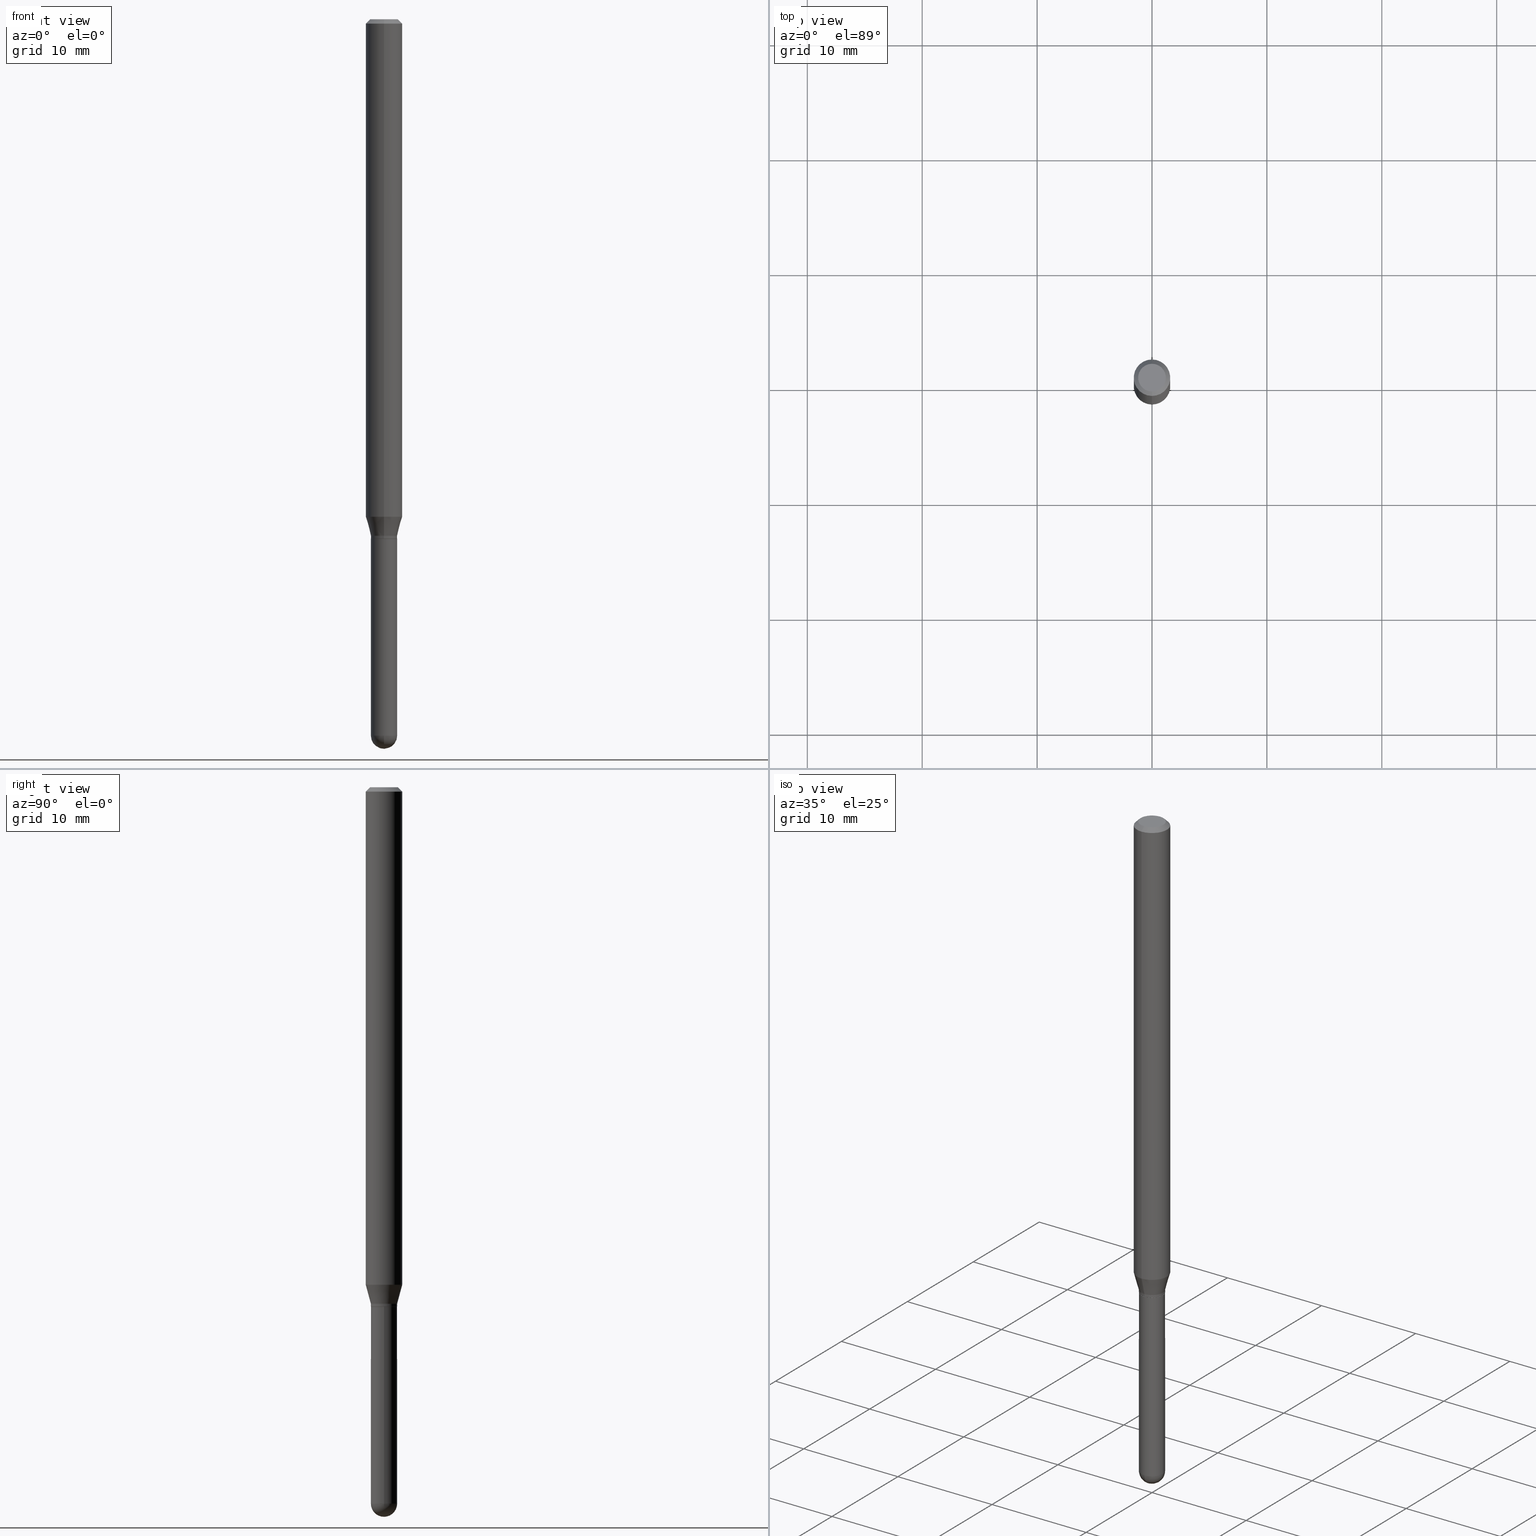
[diagram: canonical four-view strip — front | top / right | iso, engineering-drawing reading convention]
A machine part, canonical four-view strip (front | top / right | iso — engineering-drawing reading convention). The complete STEP part file that produces these views, byte-faithful:
ISO-10303-21;
HEADER;
FILE_DESCRIPTION (( 'STEP AP203' ),
    '1' );
FILE_NAME ('02767.STEP',
    '2024-03-07T21:21:22',
    ( '' ),
    ( '' ),
    'SwSTEP 2.0',
    'SolidWorks 2023',
    '' );
FILE_SCHEMA (( 'CONFIG_CONTROL_DESIGN' ));
ENDSEC;

DATA;
#1 = CARTESIAN_POINT ( 'NONE',  ( 4.352787625603671437E-29, -6.215047079848158889E-15, -1.780000000000000471 ) ) ;
#2 = CARTESIAN_POINT ( 'NONE',  ( 5.999777670883203691E-29, -8.577097597456086203E-15, -2.455000000000000071 ) ) ;
#3 = AXIS2_PLACEMENT_3D ( 'NONE', #288, #136, #208 ) ;
#4 = CARTESIAN_POINT ( 'NONE',  ( 3.668079459778454619E-31, -5.237399224591258336E-17, -0.01500000000000032904 ) ) ;
#5 = CC_DESIGN_APPROVAL ( #118, ( #438 ) ) ;
#6 = CALENDAR_DATE ( 2024, 7, 3 ) ;
#7 = CC_DESIGN_PERSON_AND_ORGANIZATION_ASSIGNMENT ( #82, #392, ( #304 ) ) ;
#8 = VERTEX_POINT ( 'NONE', #62 ) ;
#9 = EDGE_CURVE ( 'NONE', #403, #158, #145, .T. ) ;
#10 = SHAPE_DEFINITION_REPRESENTATION ( #157, #71 ) ;
#11 = ORIENTED_EDGE ( 'NONE', *, *, #325, .F. ) ;
#12 = ORIENTED_EDGE ( 'NONE', *, *, #231, .F. ) ;
#13 = CONICAL_SURFACE ( 'NONE', #302, 0.04449999999999999789, 0.7853981633969275844 ) ;
#14 = CIRCLE ( 'NONE', #418, 0.04749999999999999362 ) ;
#15 = VERTEX_POINT ( 'NONE', #30 ) ;
#16 = PERSON_AND_ORGANIZATION ( #386, #226 ) ;
#17 = ORIENTED_EDGE ( 'NONE', *, *, #381, .T. ) ;
#18 = CONICAL_SURFACE ( 'NONE', #331, 0.04500000000000019956, 0.2617993877991511287 ) ;
#19 = APPLICATION_PROTOCOL_DEFINITION ( 'international standard', 'config_control_design', 1994, #402 ) ;
#20 = DIRECTION ( 'NONE',  ( -2.445468806185136597E-29, 3.491481338843145583E-15, 1.000000000000000000 ) ) ;
#21 = PRODUCT ( '02767', '02767', '', ( #241 ) ) ;
#22 = EDGE_CURVE ( 'NONE', #65, #403, #204, .T. ) ;
#23 = DIRECTION ( 'NONE',  ( -6.982962677686266711E-15, -1.000000000000000000, 6.070773319253891442E-15 ) ) ;
#24 = APPROVAL_ROLE ( '' ) ;
#25 = VERTEX_POINT ( 'NONE', #68 ) ;
#26 = DIRECTION ( 'NONE',  ( -7.105427357601001070E-15, -1.000000000000000000, 0.000000000000000000 ) ) ;
#27 = ADVANCED_FACE ( 'NONE', ( #215 ), #319, .F. ) ;
#28 = CARTESIAN_POINT ( 'NONE',  ( 4.440892098501046230E-16, 0.06249999999999995143, -0.01500000000000054588 ) ) ;
#29 = DIRECTION ( 'NONE',  ( -1.000000000000000000, 6.982962677686265922E-15, -4.883557194083112340E-29 ) ) ;
#30 = CARTESIAN_POINT ( 'NONE',  ( 6.111747891312187447E-29, -8.731458802405945600E-15, -2.500000000000000000 ) ) ;
#31 = AXIS2_PLACEMENT_3D ( 'NONE', #81, #184, #154 ) ;
#32 = DIRECTION ( 'NONE',  ( -1.000000000000000000, 7.105427357601001070E-15, -4.926315508542082329E-29 ) ) ;
#33 = DIRECTION ( 'NONE',  ( 2.445386306518916251E-29, -3.491599483060762831E-15, -1.000000000000000000 ) ) ;
#34 = CARTESIAN_POINT ( 'NONE',  ( 6.003625919184510659E-29, -8.571586686859921733E-15, -2.455000000000000071 ) ) ;
#35 = EDGE_LOOP ( 'NONE', ( #187, #437, #312, #344 ) ) ;
#36 = CARTESIAN_POINT ( 'NONE',  ( 0.000000000000000000, 0.000000000000000000, 0.000000000000000000 ) ) ;
#37 = DIRECTION ( 'NONE',  ( -2.445386306518916251E-29, 3.491599483060762831E-15, 1.000000000000000000 ) ) ;
#38 = AXIS2_PLACEMENT_3D ( 'NONE', #242, #326, #503 ) ;
#39 = VECTOR ( 'NONE', #103, 39.37007874015748143 ) ;
#40 = APPROVAL_PERSON_ORGANIZATION ( #396, #368, #236 ) ;
#41 = DIRECTION ( 'NONE',  ( -2.445468806185136597E-29, 3.491481338843145583E-15, 1.000000000000000000 ) ) ;
#42 = CARTESIAN_POINT ( 'NONE',  ( -4.364351673553912750E-16, -0.06250000000000005551, -0.01500000000000011047 ) ) ;
#43 = ORIENTED_EDGE ( 'NONE', *, *, #235, .F. ) ;
#44 = ADVANCED_FACE ( 'NONE', ( #415 ), #137, .T. ) ;
#45 = CONICAL_SURFACE ( 'NONE', #442, 0.06250000000000000000, 0.7853981633974483900 ) ;
#46 = LINE ( 'NONE', #77, #51 ) ;
#47 = PERSON_AND_ORGANIZATION ( #386, #226 ) ;
#48 = ORIENTED_EDGE ( 'NONE', *, *, #504, .T. ) ;
#49 = AXIS2_PLACEMENT_3D ( 'NONE', #379, #506, #256 ) ;
#50 = APPROVAL_STATUS ( 'not_yet_approved' ) ;
#51 = VECTOR ( 'NONE', #192, 39.37007874015748143 ) ;
#52 = ORIENTED_EDGE ( 'NONE', *, *, #153, .F. ) ;
#53 = ORIENTED_EDGE ( 'NONE', *, *, #60, .T. ) ;
#54 = ADVANCED_FACE ( 'NONE', ( #374 ), #13, .T. ) ;
#55 = ORIENTED_EDGE ( 'NONE', *, *, #243, .F. ) ;
#56 = DIRECTION ( 'NONE',  ( 5.024295867785445738E-15, 0.7071067811861817543, 0.7071067811869132802 ) ) ;
#57 = CARTESIAN_POINT ( 'NONE',  ( -3.142333204958351929E-16, -0.04500000000000574374, -1.779499999999999860 ) ) ;
#58 = VECTOR ( 'NONE', #413, 39.37007874015748143 ) ;
#59 = DIRECTION ( 'NONE',  ( -2.445468806185136877E-29, 3.491481338843145188E-15, 1.000000000000000000 ) ) ;
#60 = EDGE_CURVE ( 'NONE', #124, #397, #494, .T. ) ;
#61 = DIRECTION ( 'NONE',  ( -2.445386306518916251E-29, 3.491599483060762831E-15, 1.000000000000000000 ) ) ;
#62 = CARTESIAN_POINT ( 'NONE',  ( -0.04499999999999999833, -7.073467503908314913E-15, -1.780000000000000027 ) ) ;
#63 = DIRECTION ( 'NONE',  ( -6.982962677686265922E-15, -1.000000000000000000, 6.138984255425310648E-15 ) ) ;
#64 = CC_DESIGN_PERSON_AND_ORGANIZATION_ASSIGNMENT ( #286, #366, ( #21 ) ) ;
#65 = VERTEX_POINT ( 'NONE', #178 ) ;
#66 = LINE ( 'NONE', #461, #169 ) ;
#67 = COORDINATED_UNIVERSAL_TIME_OFFSET ( 5, 0, .BEHIND. ) ;
#68 = CARTESIAN_POINT ( 'NONE',  ( -3.773273898774340269E-16, -0.04749999999999999362, -1.622903604164366689E-16 ) ) ;
#69 = CIRCLE ( 'NONE', #200, 0.06250000000000000000 ) ;
#70 = DIRECTION ( 'NONE',  ( -2.445468806185136877E-29, 3.491481338843145188E-15, 1.000000000000000000 ) ) ;
#71 = ADVANCED_BREP_SHAPE_REPRESENTATION ( '02767', ( #511, #161, #305 ), #128 ) ;
#72 = DIRECTION ( 'NONE',  ( -2.445386306518916251E-29, 3.491599483060762831E-15, 1.000000000000000000 ) ) ;
#73 = LINE ( 'NONE', #152, #214 ) ;
#74 = DIRECTION ( 'NONE',  ( -2.445386306518916251E-29, 3.491599483060762831E-15, 1.000000000000000000 ) ) ;
#75 = DIRECTION ( 'NONE',  ( -6.982962677686266711E-15, -1.000000000000000000, 3.491599483060763226E-15 ) ) ;
#76 = CIRCLE ( 'NONE', #201, 0.04500000000000001221 ) ;
#77 = CARTESIAN_POINT ( 'NONE',  ( -4.364351673553916201E-16, -0.06250000000000000000, 2.182249676912976770E-16 ) ) ;
#78 = EDGE_CURVE ( 'NONE', #267, #110, #464, .T. ) ;
#79 = DIRECTION ( 'NONE',  ( -2.445386306518916251E-29, 3.491599483060762831E-15, 1.000000000000000000 ) ) ;
#80 = ORIENTED_EDGE ( 'NONE', *, *, #78, .T. ) ;
#81 = CARTESIAN_POINT ( 'NONE',  ( 4.328333762538481381E-29, -6.180131085017549300E-15, -1.770000000000000018 ) ) ;
#82 = PERSON_AND_ORGANIZATION ( #386, #226 ) ;
#83 = ORIENTED_EDGE ( 'NONE', *, *, #243, .T. ) ;
#84 = CIRCLE ( 'NONE', #225, 0.04499999999999970690 ) ;
#85 = APPROVAL_PERSON_ORGANIZATION ( #16, #118, #24 ) ;
#86 = ORIENTED_EDGE ( 'NONE', *, *, #490, .F. ) ;
#87 = DATE_TIME_ROLE ( 'classification_date' ) ;
#88 = VERTEX_POINT ( 'NONE', #28 ) ;
#89 = AXIS2_PLACEMENT_3D ( 'NONE', #502, #495, #130 ) ;
#90 = ADVANCED_FACE ( 'NONE', ( #174 ), #448, .T. ) ;
#91 = CARTESIAN_POINT ( 'NONE',  ( 4.352787625603671437E-29, -6.215047079848158889E-15, -1.780000000000000471 ) ) ;
#92 = CARTESIAN_POINT ( 'NONE',  ( 4.352787625603671437E-29, -6.215047079848158889E-15, -1.780000000000000471 ) ) ;
#93 = EDGE_LOOP ( 'NONE', ( #484, #131, #408, #500 ) ) ;
#94 = FACE_OUTER_BOUND ( 'NONE', #227, .T. ) ;
#95 = CIRCLE ( 'NONE', #446, 0.04749999999999999362 ) ;
#96 = LINE ( 'NONE', #289, #492 ) ;
#97 = DIRECTION ( 'NONE',  ( -2.445386306518916251E-29, 3.491599483060762831E-15, 1.000000000000000000 ) ) ;
#98 = APPROVAL_STATUS ( 'not_yet_approved' ) ;
#99 = ORIENTED_EDGE ( 'NONE', *, *, #490, .T. ) ;
#100 = DIRECTION ( 'NONE',  ( -2.445386306518916251E-29, 3.491599483060762831E-15, 1.000000000000000000 ) ) ;
#101 = CARTESIAN_POINT ( 'NONE',  ( -3.197442310919840337E-16, -0.04500000000000843603, -2.454999999999999627 ) ) ;
#102 = DIRECTION ( 'NONE',  ( -2.445468806185136597E-29, 3.491481338843145583E-15, 1.000000000000000000 ) ) ;
#103 = DIRECTION ( 'NONE',  ( -4.937700262161976356E-15, -0.7071067811861768693, 0.7071067811869181652 ) ) ;
#104 = AXIS2_PLACEMENT_3D ( 'NONE', #247, #373, #249 ) ;
#105 = CARTESIAN_POINT ( 'NONE',  ( 6.003625919184510659E-29, -8.571586686859921733E-15, -2.455000000000000071 ) ) ;
#106 = CARTESIAN_POINT ( 'NONE',  ( 3.668079459778454619E-31, -5.237399224591258336E-17, -0.01500000000000032904 ) ) ;
#107 = EDGE_CURVE ( 'NONE', #240, #160, #96, .T. ) ;
#108 = DIRECTION ( 'NONE',  ( -2.445468806185136597E-29, 3.491481338843145583E-15, 1.000000000000000000 ) ) ;
#109 = FACE_OUTER_BOUND ( 'NONE', #498, .T. ) ;
#110 = VERTEX_POINT ( 'NONE', #281 ) ;
#111 = EDGE_CURVE ( 'NONE', #65, #467, #255, .T. ) ;
#112 =( CONVERSION_BASED_UNIT ( 'INCH', #298 ) LENGTH_UNIT ( ) NAMED_UNIT ( #435 ) );
#113 = AXIS2_PLACEMENT_3D ( 'NONE', #92, #100, #63 ) ;
#114 = LOCAL_TIME ( 16, 21, 22.00000000000000000, #193 ) ;
#115 = CARTESIAN_POINT ( 'NONE',  ( 3.197442310920445295E-16, 0.04499999999999992895, -1.571219767377340770E-16 ) ) ;
#116 = ORIENTED_EDGE ( 'NONE', *, *, #181, .T. ) ;
#117 = EDGE_LOOP ( 'NONE', ( #80, #496, #129, #273, #404 ) ) ;
#118 = APPROVAL ( #98, 'UNSPECIFIED' ) ;
#119 = ORIENTED_EDGE ( 'NONE', *, *, #22, .F. ) ;
#120 = ORIENTED_EDGE ( 'NONE', *, *, #411, .F. ) ;
#121 = VECTOR ( 'NONE', #70, 39.37007874015748143 ) ;
#122 = PRODUCT_DEFINITION_FORMATION_WITH_SPECIFIED_SOURCE ( 'ANY', '', #21, .NOT_KNOWN. ) ;
#123 = DATE_AND_TIME ( #481, #475 ) ;
#124 = VERTEX_POINT ( 'NONE', #460 ) ;
#125 = COORDINATED_UNIVERSAL_TIME_OFFSET ( 5, 0, .BEHIND. ) ;
#126 = VERTEX_POINT ( 'NONE', #101 ) ;
#127 = ADVANCED_FACE ( 'NONE', ( #278 ), #45, .T. ) ;
#128 =( GEOMETRIC_REPRESENTATION_CONTEXT ( 3 ) GLOBAL_UNCERTAINTY_ASSIGNED_CONTEXT ( ( #194 ) ) GLOBAL_UNIT_ASSIGNED_CONTEXT ( ( #112, #149, #390 ) ) REPRESENTATION_CONTEXT ( 'NONE', 'WORKASPACE' ) );
#129 = ORIENTED_EDGE ( 'NONE', *, *, #381, .F. ) ;
#130 = DIRECTION ( 'NONE',  ( -6.982962677686266711E-15, -1.000000000000000000, 6.070773319253891442E-15 ) ) ;
#131 = ORIENTED_EDGE ( 'NONE', *, *, #391, .T. ) ;
#132 = LINE ( 'NONE', #244, #271 ) ;
#133 = APPROVAL_DATE_TIME ( #328, #118 ) ;
#134 = EDGE_LOOP ( 'NONE', ( #119, #362, #164, #398 ) ) ;
#135 = EDGE_CURVE ( 'NONE', #88, #172, #432, .T. ) ;
#136 = DIRECTION ( 'NONE',  ( -2.445386306518916251E-29, 3.491599483060762831E-15, 1.000000000000000000 ) ) ;
#137 = CONICAL_SURFACE ( 'NONE', #429, 0.06250000000000000000, 0.7853981633974483900 ) ;
#138 = CIRCLE ( 'NONE', #394, 0.04499999999999965139 ) ;
#139 = AXIS2_PLACEMENT_3D ( 'NONE', #1, #424, #471 ) ;
#140 = DIRECTION ( 'NONE',  ( -2.445386306518916251E-29, 3.491599483060762831E-15, 1.000000000000000000 ) ) ;
#141 = CARTESIAN_POINT ( 'NONE',  ( 5.999777670883203691E-29, -8.577097597456086203E-15, -2.455000000000000071 ) ) ;
#142 = DIRECTION ( 'NONE',  ( -6.982962677686266711E-15, -1.000000000000000000, 6.070773319253891442E-15 ) ) ;
#143 = CYLINDRICAL_SURFACE ( 'NONE', #3, 0.06250000000000000000 ) ;
#144 = CARTESIAN_POINT ( 'NONE',  ( -4.364351673553497119E-16, -0.06250000000000591194, -1.704689110867545487 ) ) ;
#145 = CIRCLE ( 'NONE', #441, 0.06250000000000000000 ) ;
#146 = DIRECTION ( 'NONE',  ( 6.982962677686265922E-15, 1.000000000000000000, -3.483106191921935554E-15 ) ) ;
#147 = CIRCLE ( 'NONE', #409, 0.04500000000000001221 ) ;
#148 = CC_DESIGN_APPROVAL ( #368, ( #304 ) ) ;
#149 =( NAMED_UNIT ( * ) PLANE_ANGLE_UNIT ( ) SI_UNIT ( $, .RADIAN. ) );
#150 = DIRECTION ( 'NONE',  ( -2.445386306518916251E-29, 3.491599483060762831E-15, 1.000000000000000000 ) ) ;
#151 = ADVANCED_FACE ( 'NONE', ( #109 ), #180, .T. ) ;
#152 = CARTESIAN_POINT ( 'NONE',  ( -3.142333204958814399E-16, -0.04499999999999992895, 1.571219767377340770E-16 ) ) ;
#153 = EDGE_CURVE ( 'NONE', #311, #315, #512, .T. ) ;
#154 = DIRECTION ( 'NONE',  ( -6.982962677686266711E-15, -1.000000000000000000, 6.070773319253891442E-15 ) ) ;
#155 = CIRCLE ( 'NONE', #49, 0.04449999999999999789 ) ;
#156 = LOCAL_TIME ( 16, 21, 22.00000000000000000, #67 ) ;
#157 = PRODUCT_DEFINITION_SHAPE ( 'NONE', 'NONE',  #438 ) ;
#158 = VERTEX_POINT ( 'NONE', #144 ) ;
#159 = CARTESIAN_POINT ( 'NONE',  ( -3.142333204958400740E-16, -0.04500000000000638212, -1.769999999999999796 ) ) ;
#160 = VERTEX_POINT ( 'NONE', #217 ) ;
#161 = MANIFOLD_SOLID_BREP ( 'Body-Move/Copy2[2]', #363 ) ;
#162 = AXIS2_PLACEMENT_3D ( 'NONE', #220, #382, #300 ) ;
#163 = PERSON_AND_ORGANIZATION_ROLE ( 'design_supplier' ) ;
#164 = ORIENTED_EDGE ( 'NONE', *, *, #322, .T. ) ;
#165 = ORIENTED_EDGE ( 'NONE', *, *, #347, .F. ) ;
#166 = APPROVAL_DATE_TIME ( #123, #188 ) ;
#167 = EDGE_CURVE ( 'NONE', #158, #403, #69, .T. ) ;
#168 = DIRECTION ( 'NONE',  ( 6.982962677686265922E-15, 1.000000000000000000, -3.483106191921935554E-15 ) ) ;
#169 = VECTOR ( 'NONE', #61, 39.37007874015748143 ) ;
#170 = CARTESIAN_POINT ( 'NONE',  ( 4.328333762538481381E-29, -6.180131085017549300E-15, -1.770000000000000018 ) ) ;
#171 = CARTESIAN_POINT ( 'NONE',  ( -3.107418391569952919E-16, -0.04450000000000620820, -1.780000000000000027 ) ) ;
#172 = VERTEX_POINT ( 'NONE', #42 ) ;
#173 = CARTESIAN_POINT ( 'NONE',  ( 3.840629472727447874E-16, 0.04749999999999999362, -4.939923113072091241E-16 ) ) ;
#174 = FACE_OUTER_BOUND ( 'NONE', #480, .T. ) ;
#175 = CARTESIAN_POINT ( 'NONE',  ( -0.04500000000000000527, 3.197442310920451211E-16, -2.213520790614707910E-30 ) ) ;
#176 = AXIS2_PLACEMENT_3D ( 'NONE', #466, #346, #261 ) ;
#177 = DESIGN_CONTEXT ( 'detailed design', #402, 'design' ) ;
#178 = CARTESIAN_POINT ( 'NONE',  ( 3.819167204710970834E-16, 0.04499999999999402395, -1.770000000000000240 ) ) ;
#179 = ORIENTED_EDGE ( 'NONE', *, *, #430, .F. ) ;
#180 = CYLINDRICAL_SURFACE ( 'NONE', #176, 0.04500000000000000527 ) ;
#181 = EDGE_CURVE ( 'NONE', #315, #160, #186, .T. ) ;
#182 = DIRECTION ( 'NONE',  ( 1.000000000000000000, -6.982962677686266711E-15, 0.000000000000000000 ) ) ;
#183 = CARTESIAN_POINT ( 'NONE',  ( 8.024323293193261594E-45, -1.145738118666008923E-30, -3.281413358618228965E-16 ) ) ;
#184 = DIRECTION ( 'NONE',  ( -2.445386306518916251E-29, 3.491599483060762831E-15, 1.000000000000000000 ) ) ;
#185 = CARTESIAN_POINT ( 'NONE',  ( 4.351564932450412075E-29, -6.213301280106627936E-15, -1.779500000000000304 ) ) ;
#186 = CIRCLE ( 'NONE', #303, 0.04499999999999965139 ) ;
#187 = ORIENTED_EDGE ( 'NONE', *, *, #370, .T. ) ;
#188 = APPROVAL ( #486, 'UNSPECIFIED' ) ;
#189 = FACE_OUTER_BOUND ( 'NONE', #134, .T. ) ;
#190 = DIRECTION ( 'NONE',  ( -6.982962677686265922E-15, -1.000000000000000000, 6.070773319253965595E-15 ) ) ;
#191 = DIRECTION ( 'NONE',  ( -6.982962677686265922E-15, -1.000000000000000000, 3.483106191921935554E-15 ) ) ;
#192 = DIRECTION ( 'NONE',  ( -2.445386306518916251E-29, 3.491599483060762831E-15, 1.000000000000000000 ) ) ;
#193 = COORDINATED_UNIVERSAL_TIME_OFFSET ( 5, 0, .BEHIND. ) ;
#194 = UNCERTAINTY_MEASURE_WITH_UNIT (LENGTH_MEASURE( 1.000000000000000082E-05 ), #112, 'distance_accuracy_value', 'NONE');
#195 = AXIS2_PLACEMENT_3D ( 'NONE', #141, #369, #505 ) ;
#196 = LOCAL_TIME ( 16, 21, 22.00000000000000000, #352 ) ;
#197 = ORIENTED_EDGE ( 'NONE', *, *, #504, .F. ) ;
#198 = EDGE_CURVE ( 'NONE', #160, #315, #138, .T. ) ;
#199 = PERSON_AND_ORGANIZATION ( #386, #226 ) ;
#200 = AXIS2_PLACEMENT_3D ( 'NONE', #508, #427, #291 ) ;
#201 = AXIS2_PLACEMENT_3D ( 'NONE', #105, #260, #507 ) ;
#202 = ORIENTED_EDGE ( 'NONE', *, *, #211, .T. ) ;
#203 = ORIENTED_EDGE ( 'NONE', *, *, #391, .F. ) ;
#204 = LINE ( 'NONE', #417, #58 ) ;
#205 = CIRCLE ( 'NONE', #321, 0.04500000000000001221 ) ;
#206 = DIRECTION ( 'NONE',  ( 4.937700262164548042E-15, 0.7071067811865451302, -0.7071067811865499042 ) ) ;
#207 = ORIENTED_EDGE ( 'NONE', *, *, #361, .T. ) ;
#208 = DIRECTION ( 'NONE',  ( -6.982962677686265922E-15, -1.000000000000000000, 3.491599483060762831E-15 ) ) ;
#209 = DIRECTION ( 'NONE',  ( -6.982962677686265922E-15, -1.000000000000000000, 6.138984255425310648E-15 ) ) ;
#210 = FACE_OUTER_BOUND ( 'NONE', #444, .T. ) ;
#211 = EDGE_CURVE ( 'NONE', #25, #310, #95, .T. ) ;
#212 = EDGE_LOOP ( 'NONE', ( #116, #357, #287, #359 ) ) ;
#213 = CYLINDRICAL_SURFACE ( 'NONE', #104, 0.04499999999999992895 ) ;
#214 = VECTOR ( 'NONE', #343, 39.37007874015748143 ) ;
#215 = FACE_OUTER_BOUND ( 'NONE', #489, .T. ) ;
#216 = FACE_OUTER_BOUND ( 'NONE', #35, .T. ) ;
#217 = CARTESIAN_POINT ( 'NONE',  ( 3.197442310920869307E-16, 0.04499999999999355210, -1.779500000000000526 ) ) ;
#218 = CARTESIAN_POINT ( 'NONE',  ( 8.024323293193261594E-45, -1.145738118666008923E-30, -3.281413358618228965E-16 ) ) ;
#219 = EDGE_CURVE ( 'NONE', #315, #467, #73, .T. ) ;
#220 = CARTESIAN_POINT ( 'NONE',  ( 3.316907271900976096E-16, 0.04749999999999999362, -3.299216433762976019E-16 ) ) ;
#221 = DIRECTION ( 'NONE',  ( -2.445386306518916251E-29, 3.491599483060762831E-15, 1.000000000000000000 ) ) ;
#222 = CARTESIAN_POINT ( 'NONE',  ( 0.000000000000000000, 0.000000000000000000, 0.000000000000000000 ) ) ;
#223 = ORIENTED_EDGE ( 'NONE', *, *, #280, .T. ) ;
#224 = FACE_OUTER_BOUND ( 'NONE', #372, .T. ) ;
#225 = AXIS2_PLACEMENT_3D ( 'NONE', #290, #32, #26 ) ;
#226 = ORGANIZATION ( 'UNSPECIFIED', 'UNSPECIFIED', '' ) ;
#227 = EDGE_LOOP ( 'NONE', ( #269, #83, #317, #233 ) ) ;
#228 = APPROVAL_DATE_TIME ( #399, #368 ) ;
#229 = DIRECTION ( 'NONE',  ( 1.000000000000000000, 0.000000000000000000, 0.000000000000000000 ) ) ;
#230 = ORIENTED_EDGE ( 'NONE', *, *, #400, .F. ) ;
#231 = EDGE_CURVE ( 'NONE', #310, #25, #14, .T. ) ;
#232 = PERSON_AND_ORGANIZATION ( #386, #226 ) ;
#233 = ORIENTED_EDGE ( 'NONE', *, *, #198, .F. ) ;
#234 = ORIENTED_EDGE ( 'NONE', *, *, #181, .F. ) ;
#235 = EDGE_CURVE ( 'NONE', #15, #267, #349, .T. ) ;
#236 = APPROVAL_ROLE ( '' ) ;
#237 = CONICAL_SURFACE ( 'NONE', #31, 0.04500000000000019956, 0.2617993877991511287 ) ;
#238 = CIRCLE ( 'NONE', #89, 0.04500000000000019956 ) ;
#239 = APPROVAL_PERSON_ORGANIZATION ( #199, #188, #316 ) ;
#240 = VERTEX_POINT ( 'NONE', #469 ) ;
#241 = MECHANICAL_CONTEXT ( 'NONE', #348, 'mechanical' ) ;
#242 = CARTESIAN_POINT ( 'NONE',  ( 4.352787625603670877E-29, -6.215047079848158100E-15, -1.780000000000000027 ) ) ;
#243 = EDGE_CURVE ( 'NONE', #240, #311, #155, .T. ) ;
#244 = CARTESIAN_POINT ( 'NONE',  ( -4.287811248607203282E-16, -0.06250000000000005551, -0.01500000000000011047 ) ) ;
#245 = ORIENTED_EDGE ( 'NONE', *, *, #235, .T. ) ;
#246 = VECTOR ( 'NONE', #420, 39.37007874015748143 ) ;
#247 = CARTESIAN_POINT ( 'NONE',  ( 0.000000000000000000, 0.000000000000000000, 0.000000000000000000 ) ) ;
#248 = DIRECTION ( 'NONE',  ( -6.982962677686265922E-15, -1.000000000000000000, 4.370956789862821150E-15 ) ) ;
#249 = DIRECTION ( 'NONE',  ( -6.982962677686265133E-15, -1.000000000000000000, 3.491599483060762831E-15 ) ) ;
#250 = DIRECTION ( 'NONE',  ( -2.445386306518916251E-29, 3.491599483060762831E-15, 1.000000000000000000 ) ) ;
#251 = SPHERICAL_SURFACE ( 'NONE', #195, 0.04499999999999970690 ) ;
#252 = ADVANCED_FACE ( 'NONE', ( #422 ), #251, .T. ) ;
#253 = CARTESIAN_POINT ( 'NONE',  ( 4.168623408587402441E-29, -5.952091618284433970E-15, -1.704689110867545931 ) ) ;
#254 = DIRECTION ( 'NONE',  ( 6.982962677686265922E-15, 1.000000000000000000, -6.070773319253957706E-15 ) ) ;
#255 = CIRCLE ( 'NONE', #294, 0.04500000000000019956 ) ;
#256 = DIRECTION ( 'NONE',  ( -6.982962677686265922E-15, -1.000000000000000000, 6.138984255425310648E-15 ) ) ;
#257 = PLANE ( 'NONE',  #162 ) ;
#258 = ORIENTED_EDGE ( 'NONE', *, *, #277, .F. ) ;
#259 = DIRECTION ( 'NONE',  ( -6.982962677686265922E-15, -1.000000000000000000, 6.070773319253965595E-15 ) ) ;
#260 = DIRECTION ( 'NONE',  ( -2.445468806185136597E-29, 3.491481338843145583E-15, 1.000000000000000000 ) ) ;
#261 = DIRECTION ( 'NONE',  ( 1.000000000000000000, -6.982962677686267499E-15, 4.876176775795935793E-29 ) ) ;
#262 = ORIENTED_EDGE ( 'NONE', *, *, #135, .T. ) ;
#263 = VECTOR ( 'NONE', #59, 39.37007874015748143 ) ;
#264 = CONICAL_SURFACE ( 'NONE', #113, 0.04449999999999999789, 0.7853981633969275844 ) ;
#265 = CIRCLE ( 'NONE', #139, 0.04449999999999999789 ) ;
#266 = DIRECTION ( 'NONE',  ( 2.438088387897960049E-29, -3.491481338843145188E-15, -1.000000000000000000 ) ) ;
#267 = VERTEX_POINT ( 'NONE', #282 ) ;
#268 = ADVANCED_FACE ( 'NONE', ( #459 ), #213, .T. ) ;
#269 = ORIENTED_EDGE ( 'NONE', *, *, #107, .F. ) ;
#270 = EDGE_LOOP ( 'NONE', ( #356, #223, #179, #86 ) ) ;
#271 = VECTOR ( 'NONE', #365, 39.37007874015748143 ) ;
#272 = EDGE_LOOP ( 'NONE', ( #43, #358, #445, #309 ) ) ;
#273 = ORIENTED_EDGE ( 'NONE', *, *, #60, .F. ) ;
#274 = ADVANCED_FACE ( 'NONE', ( #94 ), #264, .T. ) ;
#275 = AXIS2_PLACEMENT_3D ( 'NONE', #2, #338, #297 ) ;
#276 = ORIENTED_EDGE ( 'NONE', *, *, #135, .F. ) ;
#277 = EDGE_CURVE ( 'NONE', #126, #124, #205, .T. ) ;
#278 = FACE_OUTER_BOUND ( 'NONE', #353, .T. ) ;
#279 = CARTESIAN_POINT ( 'NONE',  ( 4.352934475009543120E-29, -6.214836783140799618E-15, -1.780000000000000027 ) ) ;
#280 = EDGE_CURVE ( 'NONE', #403, #88, #66, .T. ) ;
#281 = CARTESIAN_POINT ( 'NONE',  ( -0.04500000000000001221, -7.073467503908314913E-15, -2.455000000000000071 ) ) ;
#282 = CARTESIAN_POINT ( 'NONE',  ( 3.142333204959410482E-16, 0.04499999999999129002, -2.455000000000000071 ) ) ;
#283 = DIRECTION ( 'NONE',  ( 1.000000000000000000, -6.982962677686266711E-15, 0.000000000000000000 ) ) ;
#284 = VECTOR ( 'NONE', #74, 39.37007874015748143 ) ;
#285 = CARTESIAN_POINT ( 'NONE',  ( 4.328333762538481381E-29, -6.180131085017549300E-15, -1.770000000000000018 ) ) ;
#286 = PERSON_AND_ORGANIZATION ( #386, #226 ) ;
#287 = ORIENTED_EDGE ( 'NONE', *, *, #370, .F. ) ;
#288 = CARTESIAN_POINT ( 'NONE',  ( 0.000000000000000000, 0.000000000000000000, 0.000000000000000000 ) ) ;
#289 = CARTESIAN_POINT ( 'NONE',  ( 3.161915174132880537E-16, 0.04449999999999378064, -1.780000000000000693 ) ) ;
#290 = CARTESIAN_POINT ( 'NONE',  ( 5.999777670883203691E-29, -8.577097597456086203E-15, -2.455000000000000071 ) ) ;
#291 = DIRECTION ( 'NONE',  ( -6.982962677686265922E-15, -1.000000000000000000, 4.370956789862821150E-15 ) ) ;
#292 = CLOSED_SHELL ( 'NONE', ( #482, #252, #462, #313, #151 ) ) ;
#293 = CARTESIAN_POINT ( 'NONE',  ( 4.440892098501044258E-16, 0.06249999999999408112, -1.704689110867546153 ) ) ;
#294 = AXIS2_PLACEMENT_3D ( 'NONE', #170, #140, #142 ) ;
#295 = DIRECTION ( 'NONE',  ( -6.982962677686266711E-15, -1.000000000000000000, 3.491599483060763226E-15 ) ) ;
#296 = DIRECTION ( 'NONE',  ( -1.000000000000000000, 6.982962677686265922E-15, -4.876176775795935793E-29 ) ) ;
#297 = DIRECTION ( 'NONE',  ( 6.982962677686266711E-15, 1.000000000000000000, 0.000000000000000000 ) ) ;
#298 = LENGTH_MEASURE_WITH_UNIT ( LENGTH_MEASURE( 0.02539999999999999897 ), #337 );
#299 = ADVANCED_FACE ( 'NONE', ( #375 ), #143, .T. ) ;
#300 = DIRECTION ( 'NONE',  ( 6.982962677686265922E-15, 1.000000000000000000, -3.491599483060762831E-15 ) ) ;
#301 = CARTESIAN_POINT ( 'NONE',  ( 0.000000000000000000, 0.000000000000000000, 0.000000000000000000 ) ) ;
#302 = AXIS2_PLACEMENT_3D ( 'NONE', #91, #250, #209 ) ;
#303 = AXIS2_PLACEMENT_3D ( 'NONE', #336, #221, #259 ) ;
#304 = SECURITY_CLASSIFICATION ( '', '', #439 ) ;
#305 = AXIS2_PLACEMENT_3D ( 'NONE', #301, #483, #229 ) ;
#306 = EDGE_CURVE ( 'NONE', #15, #126, #84, .T. ) ;
#307 = CYLINDRICAL_SURFACE ( 'NONE', #342, 0.06250000000000000000 ) ;
#308 = PERSON_AND_ORGANIZATION_ROLE ( 'creator' ) ;
#309 = ORIENTED_EDGE ( 'NONE', *, *, #78, .F. ) ;
#310 = VERTEX_POINT ( 'NONE', #173 ) ;
#311 = VERTEX_POINT ( 'NONE', #171 ) ;
#312 = ORIENTED_EDGE ( 'NONE', *, *, #167, .F. ) ;
#313 = ADVANCED_FACE ( 'NONE', ( #210 ), #406, .T. ) ;
#314 = CIRCLE ( 'NONE', #509, 0.04499999999999999833 ) ;
#315 = VERTEX_POINT ( 'NONE', #57 ) ;
#316 = APPROVAL_ROLE ( '' ) ;
#317 = ORIENTED_EDGE ( 'NONE', *, *, #153, .T. ) ;
#318 = ORIENTED_EDGE ( 'NONE', *, *, #306, .F. ) ;
#319 = PLANE ( 'NONE',  #38 ) ;
#320 = PRODUCT_RELATED_PRODUCT_CATEGORY ( 'detail', '', ( #21 ) ) ;
#321 = AXIS2_PLACEMENT_3D ( 'NONE', #412, #102, #416 ) ;
#322 = EDGE_CURVE ( 'NONE', #467, #158, #327, .T. ) ;
#323 = CARTESIAN_POINT ( 'NONE',  ( 0.04500000000000000527, -3.142333204958820809E-16, 2.194279549108171317E-30 ) ) ;
#324 = DIRECTION ( 'NONE',  ( 1.000000000000000000, -6.982962677686269077E-15, 0.000000000000000000 ) ) ;
#325 = EDGE_CURVE ( 'NONE', #110, #8, #455, .T. ) ;
#326 = DIRECTION ( 'NONE',  ( -2.445386306518915691E-29, 3.491599483060762831E-15, 1.000000000000000000 ) ) ;
#327 = LINE ( 'NONE', #335, #246 ) ;
#328 = DATE_AND_TIME ( #493, #332 ) ;
#329 = DIRECTION ( 'NONE',  ( -2.445386306518916251E-29, 3.491599483060762831E-15, 1.000000000000000000 ) ) ;
#330 = ADVANCED_FACE ( 'NONE', ( #216 ), #18, .T. ) ;
#331 = AXIS2_PLACEMENT_3D ( 'NONE', #285, #97, #23 ) ;
#332 = LOCAL_TIME ( 16, 21, 22.00000000000000000, #452 ) ;
#333 = CARTESIAN_POINT ( 'NONE',  ( 4.364351673553919652E-16, 0.06249999999999995143, -0.01500000000000054588 ) ) ;
#334 = CARTESIAN_POINT ( 'NONE',  ( 0.000000000000000000, 0.000000000000000000, 0.000000000000000000 ) ) ;
#335 = CARTESIAN_POINT ( 'NONE',  ( -3.142333204958400740E-16, -0.04500000000000638212, -1.769999999999999796 ) ) ;
#336 = CARTESIAN_POINT ( 'NONE',  ( 4.351564932450412075E-29, -6.213301280106627936E-15, -1.779500000000000304 ) ) ;
#337 =( LENGTH_UNIT ( ) NAMED_UNIT ( * ) SI_UNIT ( $, .METRE. ) );
#338 = DIRECTION ( 'NONE',  ( 1.000000000000000000, -6.982962677686265922E-15, 4.883557194083112340E-29 ) ) ;
#339 = EDGE_LOOP ( 'NONE', ( #440, #202 ) ) ;
#340 = DIRECTION ( 'NONE',  ( -6.982962677686265922E-15, -1.000000000000000000, 3.491599483060762831E-15 ) ) ;
#341 = CIRCLE ( 'NONE', #485, 0.04499999999999999833 ) ;
#342 = AXIS2_PLACEMENT_3D ( 'NONE', #222, #510, #340 ) ;
#343 = DIRECTION ( 'NONE',  ( -2.445386306518916251E-29, 3.491599483060762831E-15, 1.000000000000000000 ) ) ;
#344 = ORIENTED_EDGE ( 'NONE', *, *, #322, .F. ) ;
#345 = FACE_OUTER_BOUND ( 'NONE', #117, .T. ) ;
#346 = DIRECTION ( 'NONE',  ( -2.445468806185136597E-29, 3.491481338843145583E-15, 1.000000000000000000 ) ) ;
#347 = EDGE_CURVE ( 'NONE', #124, #267, #147, .T. ) ;
#348 = APPLICATION_CONTEXT ( 'configuration controlled 3d designs of mechanical parts and assemblies' ) ;
#349 = CIRCLE ( 'NONE', #275, 0.04499999999999970690 ) ;
#350 = ORIENTED_EDGE ( 'NONE', *, *, #277, .T. ) ;
#351 = ORIENTED_EDGE ( 'NONE', *, *, #219, .T. ) ;
#352 = COORDINATED_UNIVERSAL_TIME_OFFSET ( 5, 0, .BEHIND. ) ;
#353 = EDGE_LOOP ( 'NONE', ( #203, #12, #207, #262 ) ) ;
#354 = DATE_AND_TIME ( #478, #114 ) ;
#355 = AXIS2_PLACEMENT_3D ( 'NONE', #334, #329, #453 ) ;
#356 = ORIENTED_EDGE ( 'NONE', *, *, #167, .T. ) ;
#357 = ORIENTED_EDGE ( 'NONE', *, *, #411, .T. ) ;
#358 = ORIENTED_EDGE ( 'NONE', *, *, #306, .T. ) ;
#359 = ORIENTED_EDGE ( 'NONE', *, *, #219, .F. ) ;
#360 = CC_DESIGN_PERSON_AND_ORGANIZATION_ASSIGNMENT ( #371, #456, ( #438 ) ) ;
#361 = EDGE_CURVE ( 'NONE', #310, #88, #414, .T. ) ;
#362 = ORIENTED_EDGE ( 'NONE', *, *, #111, .T. ) ;
#363 = CLOSED_SHELL ( 'NONE', ( #268, #54, #44, #299, #330, #423, #470, #127, #458, #27, #274, #90 ) ) ;
#364 = AXIS2_PLACEMENT_3D ( 'NONE', #367, #20, #283 ) ;
#365 = DIRECTION ( 'NONE',  ( -4.851104656540964275E-15, -0.7071067811865500152, -0.7071067811865450192 ) ) ;
#366 = PERSON_AND_ORGANIZATION_ROLE ( 'design_owner' ) ;
#367 = CARTESIAN_POINT ( 'NONE',  ( 6.003625919184510659E-29, -8.571586686859921733E-15, -2.455000000000000071 ) ) ;
#368 = APPROVAL ( #50, 'UNSPECIFIED' ) ;
#369 = DIRECTION ( 'NONE',  ( -1.000000000000000000, 6.982962677686265922E-15, -4.883557194083112340E-29 ) ) ;
#370 = EDGE_CURVE ( 'NONE', #467, #65, #238, .T. ) ;
#371 = PERSON_AND_ORGANIZATION ( #386, #226 ) ;
#372 = EDGE_LOOP ( 'NONE', ( #479, #433, #99, #276 ) ) ;
#373 = DIRECTION ( 'NONE',  ( -2.445386306518916251E-29, 3.491599483060762831E-15, 1.000000000000000000 ) ) ;
#374 = FACE_OUTER_BOUND ( 'NONE', #457, .T. ) ;
#375 = FACE_OUTER_BOUND ( 'NONE', #270, .T. ) ;
#376 = CARTESIAN_POINT ( 'NONE',  ( 3.668079459778454619E-31, -5.237399224591258336E-17, -0.01500000000000032904 ) ) ;
#377 = DIRECTION ( 'NONE',  ( -2.445468806185136597E-29, 3.491481338843145583E-15, 1.000000000000000000 ) ) ;
#378 = CALENDAR_DATE ( 2024, 7, 3 ) ;
#379 = CARTESIAN_POINT ( 'NONE',  ( 4.352787625603671437E-29, -6.215047079848158889E-15, -1.780000000000000471 ) ) ;
#380 = ORIENTED_EDGE ( 'NONE', *, *, #400, .T. ) ;
#381 = EDGE_CURVE ( 'NONE', #397, #8, #314, .T. ) ;
#382 = DIRECTION ( 'NONE',  ( 2.445386306518915691E-29, -3.491599483060762831E-15, -1.000000000000000000 ) ) ;
#383 = DATE_AND_TIME ( #378, #156 ) ;
#384 = DIRECTION ( 'NONE',  ( -6.982962677686265922E-15, -1.000000000000000000, 3.483106191921935554E-15 ) ) ;
#385 = CYLINDRICAL_SURFACE ( 'NONE', #419, 0.04500000000000000527 ) ;
#386 = PERSON ( 'UNSPECIFIED', 'UNSPECIFIED', 'UNSPECIFIED', ('UNSPECIFIED'), ('UNSPECIFIED'), ('UNSPECIFIED') ) ;
#387 = AXIS2_PLACEMENT_3D ( 'NONE', #4, #79, #191 ) ;
#388 = CARTESIAN_POINT ( 'NONE',  ( -3.107418391569952919E-16, -0.04450000000000620820, -1.780000000000000027 ) ) ;
#389 = CC_DESIGN_PERSON_AND_ORGANIZATION_ASSIGNMENT ( #232, #308, ( #122 ) ) ;
#390 =( NAMED_UNIT ( * ) SI_UNIT ( $, .STERADIAN. ) SOLID_ANGLE_UNIT ( ) );
#391 = EDGE_CURVE ( 'NONE', #25, #172, #132, .T. ) ;
#392 = PERSON_AND_ORGANIZATION_ROLE ( 'classification_officer' ) ;
#393 = FACE_OUTER_BOUND ( 'NONE', #339, .T. ) ;
#394 = AXIS2_PLACEMENT_3D ( 'NONE', #185, #425, #190 ) ;
#395 = ORIENTED_EDGE ( 'NONE', *, *, #443, .T. ) ;
#396 = PERSON_AND_ORGANIZATION ( #386, #226 ) ;
#397 = VERTEX_POINT ( 'NONE', #497 ) ;
#398 = ORIENTED_EDGE ( 'NONE', *, *, #9, .F. ) ;
#399 = DATE_AND_TIME ( #6, #196 ) ;
#400 = EDGE_CURVE ( 'NONE', #8, #397, #341, .T. ) ;
#401 = AXIS2_PLACEMENT_3D ( 'NONE', #477, #266, #296 ) ;
#402 = APPLICATION_CONTEXT ( 'configuration controlled 3d designs of mechanical parts and assemblies' ) ;
#403 = VERTEX_POINT ( 'NONE', #293 ) ;
#404 = ORIENTED_EDGE ( 'NONE', *, *, #347, .T. ) ;
#405 = DIRECTION ( 'NONE',  ( -2.445386306518916251E-29, 3.491599483060762831E-15, 1.000000000000000000 ) ) ;
#406 = SPHERICAL_SURFACE ( 'NONE', #454, 0.04499999999999970690 ) ;
#407 = APPLICATION_PROTOCOL_DEFINITION ( 'international standard', 'config_control_design', 1994, #348 ) ;
#408 = ORIENTED_EDGE ( 'NONE', *, *, #430, .T. ) ;
#409 = AXIS2_PLACEMENT_3D ( 'NONE', #34, #377, #182 ) ;
#410 = CC_DESIGN_APPROVAL ( #188, ( #122 ) ) ;
#411 = EDGE_CURVE ( 'NONE', #160, #65, #465, .T. ) ;
#412 = CARTESIAN_POINT ( 'NONE',  ( 6.003625919184510659E-29, -8.571586686859921733E-15, -2.455000000000000071 ) ) ;
#413 = DIRECTION ( 'NONE',  ( 1.839019923739606232E-15, 0.2588190451025257910, 0.9659258262890669799 ) ) ;
#414 = LINE ( 'NONE', #333, #472 ) ;
#415 = FACE_OUTER_BOUND ( 'NONE', #93, .T. ) ;
#416 = DIRECTION ( 'NONE',  ( 1.000000000000000000, -6.982962677686266711E-15, 0.000000000000000000 ) ) ;
#417 = CARTESIAN_POINT ( 'NONE',  ( 3.197442310920897904E-16, 0.04499999999999402395, -1.770000000000000240 ) ) ;
#418 = AXIS2_PLACEMENT_3D ( 'NONE', #218, #150, #75 ) ;
#419 = AXIS2_PLACEMENT_3D ( 'NONE', #36, #108, #434 ) ;
#420 = DIRECTION ( 'NONE',  ( -1.807323732225336056E-15, -0.2588190451025190186, 0.9659258262890687563 ) ) ;
#421 = CC_DESIGN_DATE_AND_TIME_ASSIGNMENT ( #354, #87, ( #304 ) ) ;
#422 = FACE_OUTER_BOUND ( 'NONE', #272, .T. ) ;
#423 = ADVANCED_FACE ( 'NONE', ( #189 ), #237, .T. ) ;
#424 = DIRECTION ( 'NONE',  ( -2.445386306518916251E-29, 3.491599483060762831E-15, 1.000000000000000000 ) ) ;
#425 = DIRECTION ( 'NONE',  ( -2.445386306518916251E-29, 3.491599483060762831E-15, 1.000000000000000000 ) ) ;
#426 = PLANE ( 'NONE',  #401 ) ;
#427 = DIRECTION ( 'NONE',  ( -2.445386306518916251E-29, 3.491599483060762831E-15, 1.000000000000000000 ) ) ;
#428 = ORIENTED_EDGE ( 'NONE', *, *, #198, .T. ) ;
#429 = AXIS2_PLACEMENT_3D ( 'NONE', #376, #450, #168 ) ;
#430 = EDGE_CURVE ( 'NONE', #172, #88, #474, .T. ) ;
#431 = FACE_OUTER_BOUND ( 'NONE', #476, .T. ) ;
#432 = CIRCLE ( 'NONE', #501, 0.06250000000000000000 ) ;
#433 = ORIENTED_EDGE ( 'NONE', *, *, #9, .T. ) ;
#434 = DIRECTION ( 'NONE',  ( 1.000000000000000000, -6.982962677686267499E-15, 4.876176775795935793E-29 ) ) ;
#435 = DIMENSIONAL_EXPONENTS ( 1.000000000000000000, 0.000000000000000000, 0.000000000000000000, 0.000000000000000000, 0.000000000000000000, 0.000000000000000000, 0.000000000000000000 ) ;
#436 = DATE_TIME_ROLE ( 'creation_date' ) ;
#437 = ORIENTED_EDGE ( 'NONE', *, *, #22, .T. ) ;
#438 = PRODUCT_DEFINITION ( 'UNKNOWN', '', #122, #177 ) ;
#439 = SECURITY_CLASSIFICATION_LEVEL ( 'unclassified' ) ;
#440 = ORIENTED_EDGE ( 'NONE', *, *, #231, .T. ) ;
#441 = AXIS2_PLACEMENT_3D ( 'NONE', #253, #405, #248 ) ;
#442 = AXIS2_PLACEMENT_3D ( 'NONE', #106, #33, #146 ) ;
#443 = EDGE_CURVE ( 'NONE', #110, #126, #76, .T. ) ;
#444 = EDGE_LOOP ( 'NONE', ( #318, #245, #165, #258 ) ) ;
#445 = ORIENTED_EDGE ( 'NONE', *, *, #443, .F. ) ;
#446 = AXIS2_PLACEMENT_3D ( 'NONE', #183, #72, #295 ) ;
#447 = CC_DESIGN_SECURITY_CLASSIFICATION ( #304, ( #122 ) ) ;
#448 = CYLINDRICAL_SURFACE ( 'NONE', #355, 0.04499999999999992895 ) ;
#449 = DIRECTION ( 'NONE',  ( -2.445468806185136597E-29, 3.491481338843145583E-15, 1.000000000000000000 ) ) ;
#450 = DIRECTION ( 'NONE',  ( 2.445386306518916251E-29, -3.491599483060762831E-15, -1.000000000000000000 ) ) ;
#451 = CARTESIAN_POINT ( 'NONE',  ( 4.352934475009543120E-29, -6.214836783140799618E-15, -1.780000000000000027 ) ) ;
#452 = COORDINATED_UNIVERSAL_TIME_OFFSET ( 5, 0, .BEHIND. ) ;
#453 = DIRECTION ( 'NONE',  ( -6.982962677686265133E-15, -1.000000000000000000, 3.491599483060762831E-15 ) ) ;
#454 = AXIS2_PLACEMENT_3D ( 'NONE', #499, #29, #254 ) ;
#455 = LINE ( 'NONE', #175, #121 ) ;
#456 = PERSON_AND_ORGANIZATION_ROLE ( 'creator' ) ;
#457 = EDGE_LOOP ( 'NONE', ( #48, #487, #234, #52 ) ) ;
#458 = ADVANCED_FACE ( 'NONE', ( #393 ), #257, .F. ) ;
#459 = FACE_OUTER_BOUND ( 'NONE', #212, .T. ) ;
#460 = CARTESIAN_POINT ( 'NONE',  ( 0.04500000000000001221, -7.707445055496241968E-15, -2.455000000000000071 ) ) ;
#461 = CARTESIAN_POINT ( 'NONE',  ( 4.440892098500625669E-16, 0.06250000000000000000, -2.182249676912976770E-16 ) ) ;
#462 = ADVANCED_FACE ( 'NONE', ( #431 ), #426, .F. ) ;
#463 = CARTESIAN_POINT ( 'NONE',  ( 3.668079459778454619E-31, -5.237399224591258336E-17, -0.01500000000000032904 ) ) ;
#464 = CIRCLE ( 'NONE', #364, 0.04500000000000001221 ) ;
#465 = LINE ( 'NONE', #115, #284 ) ;
#466 = CARTESIAN_POINT ( 'NONE',  ( 0.000000000000000000, 0.000000000000000000, 0.000000000000000000 ) ) ;
#467 = VERTEX_POINT ( 'NONE', #159 ) ;
#468 = CC_DESIGN_PERSON_AND_ORGANIZATION_ASSIGNMENT ( #47, #163, ( #122 ) ) ;
#469 = CARTESIAN_POINT ( 'NONE',  ( 3.179678742526874676E-16, 0.04449999999999378064, -1.780000000000000693 ) ) ;
#470 = ADVANCED_FACE ( 'NONE', ( #224 ), #307, .T. ) ;
#471 = DIRECTION ( 'NONE',  ( -6.982962677686265922E-15, -1.000000000000000000, 6.138984255425310648E-15 ) ) ;
#472 = VECTOR ( 'NONE', #206, 39.37007874015748143 ) ;
#473 = DIRECTION ( 'NONE',  ( 1.000000000000000000, -6.982962677686269077E-15, 0.000000000000000000 ) ) ;
#474 = CIRCLE ( 'NONE', #387, 0.06250000000000000000 ) ;
#475 = LOCAL_TIME ( 16, 21, 22.00000000000000000, #125 ) ;
#476 = EDGE_LOOP ( 'NONE', ( #17, #380 ) ) ;
#477 = CARTESIAN_POINT ( 'NONE',  ( 3.142333204959255175E-16, 0.04499999999999378109, -1.780000000000000471 ) ) ;
#478 = CALENDAR_DATE ( 2024, 7, 3 ) ;
#479 = ORIENTED_EDGE ( 'NONE', *, *, #280, .F. ) ;
#480 = EDGE_LOOP ( 'NONE', ( #120, #428, #351, #491 ) ) ;
#481 = CALENDAR_DATE ( 2024, 7, 3 ) ;
#482 = ADVANCED_FACE ( 'NONE', ( #345 ), #385, .T. ) ;
#483 = DIRECTION ( 'NONE',  ( 0.000000000000000000, 0.000000000000000000, 1.000000000000000000 ) ) ;
#484 = ORIENTED_EDGE ( 'NONE', *, *, #211, .F. ) ;
#485 = AXIS2_PLACEMENT_3D ( 'NONE', #451, #41, #473 ) ;
#486 = APPROVAL_STATUS ( 'not_yet_approved' ) ;
#487 = ORIENTED_EDGE ( 'NONE', *, *, #107, .T. ) ;
#488 = CC_DESIGN_DATE_AND_TIME_ASSIGNMENT ( #383, #436, ( #438 ) ) ;
#489 = EDGE_LOOP ( 'NONE', ( #197, #55 ) ) ;
#490 = EDGE_CURVE ( 'NONE', #158, #172, #46, .T. ) ;
#491 = ORIENTED_EDGE ( 'NONE', *, *, #111, .F. ) ;
#492 = VECTOR ( 'NONE', #56, 39.37007874015748143 ) ;
#493 = CALENDAR_DATE ( 2024, 7, 3 ) ;
#494 = LINE ( 'NONE', #323, #263 ) ;
#495 = DIRECTION ( 'NONE',  ( -2.445386306518916251E-29, 3.491599483060762831E-15, 1.000000000000000000 ) ) ;
#496 = ORIENTED_EDGE ( 'NONE', *, *, #325, .T. ) ;
#497 = CARTESIAN_POINT ( 'NONE',  ( 0.04499999999999999833, -6.529070103636681305E-15, -1.780000000000000027 ) ) ;
#498 = EDGE_LOOP ( 'NONE', ( #11, #395, #350, #53, #230 ) ) ;
#499 = CARTESIAN_POINT ( 'NONE',  ( 5.999777670883203691E-29, -8.577097597456086203E-15, -2.455000000000000071 ) ) ;
#500 = ORIENTED_EDGE ( 'NONE', *, *, #361, .F. ) ;
#501 = AXIS2_PLACEMENT_3D ( 'NONE', #463, #37, #384 ) ;
#502 = CARTESIAN_POINT ( 'NONE',  ( 4.328333762538481381E-29, -6.180131085017549300E-15, -1.770000000000000018 ) ) ;
#503 = DIRECTION ( 'NONE',  ( -6.982962677686265922E-15, -1.000000000000000000, 3.491599483060762831E-15 ) ) ;
#504 = EDGE_CURVE ( 'NONE', #311, #240, #265, .T. ) ;
#505 = DIRECTION ( 'NONE',  ( 6.982962677686265922E-15, 1.000000000000000000, -6.070773319253957706E-15 ) ) ;
#506 = DIRECTION ( 'NONE',  ( -2.445386306518916251E-29, 3.491599483060762831E-15, 1.000000000000000000 ) ) ;
#507 = DIRECTION ( 'NONE',  ( 1.000000000000000000, -6.982962677686266711E-15, 0.000000000000000000 ) ) ;
#508 = CARTESIAN_POINT ( 'NONE',  ( 4.168623408587402441E-29, -5.952091618284433970E-15, -1.704689110867545931 ) ) ;
#509 = AXIS2_PLACEMENT_3D ( 'NONE', #279, #449, #324 ) ;
#510 = DIRECTION ( 'NONE',  ( -2.445386306518916251E-29, 3.491599483060762831E-15, 1.000000000000000000 ) ) ;
#511 = MANIFOLD_SOLID_BREP ( 'Body-Move/Copy2[1]', #292 ) ;
#512 = LINE ( 'NONE', #388, #39 ) ;
ENDSEC;
END-ISO-10303-21;
